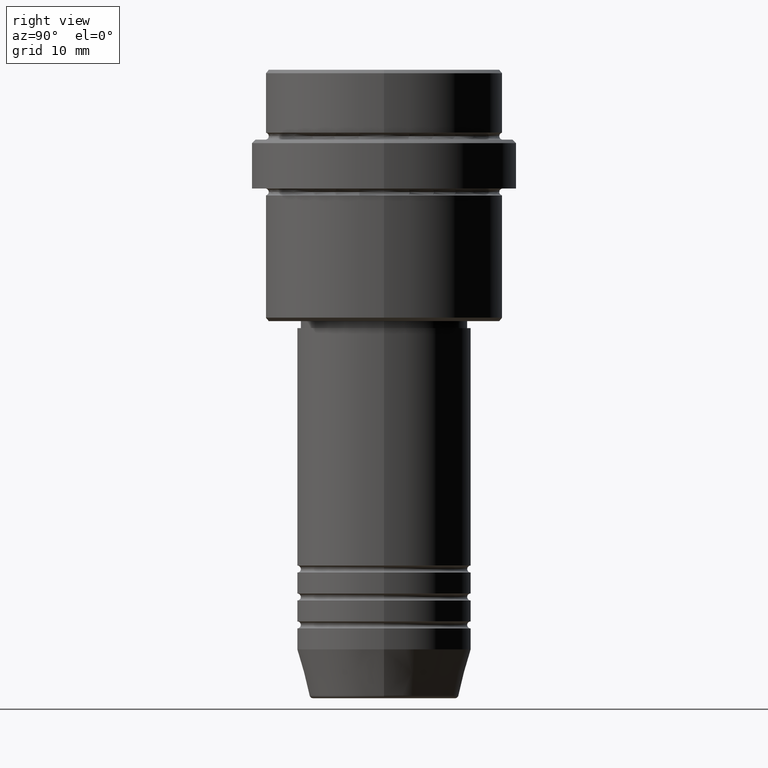
[diagram: clean part render]
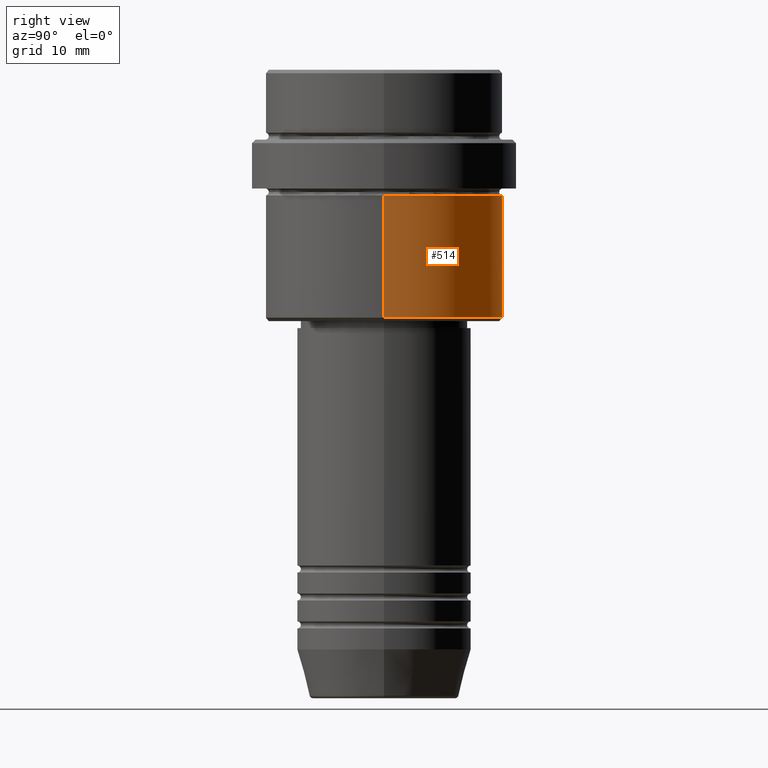
[diagram: same view with one face highlighted and labeled with its STEP entity id]
A machine part, right view. The second image highlights one B-rep face of the part: STEP entity #514.
In plain terms, the highlighted cylindrical surface (partial cylindrical patch) has radius 17 mm, axis along (-0, -0, 1).
Its self-contained STEP definition (entity closure, byte-faithful):
#76 = CIRCLE ( 'NONE', #874, 17.00000000000000000 ) ;
#77 = EDGE_CURVE ( 'NONE', #567, #286, #278, .T. ) ;
#93 = VECTOR ( 'NONE', #449, 1000.000000000000000 ) ;
#199 = EDGE_CURVE ( 'NONE', #567, #811, #1328, .T. ) ;
#204 = CARTESIAN_POINT ( 'NONE',  ( 0.000000000000000000, 0.000000000000000000, 0.000000000000000000 ) ) ;
#229 = CYLINDRICAL_SURFACE ( 'NONE', #240, 17.00000000000000000 ) ;
#240 = AXIS2_PLACEMENT_3D ( 'NONE', #204, #1073, #328 ) ;
#278 = CIRCLE ( 'NONE', #1354, 17.00000000000000000 ) ;
#286 = VERTEX_POINT ( 'NONE', #705 ) ;
#299 = VECTOR ( 'NONE', #639, 1000.000000000000000 ) ;
#328 = DIRECTION ( 'NONE',  ( 1.000000000000000000, 0.000000000000000000, 0.000000000000000000 ) ) ;
#350 = ORIENTED_EDGE ( 'NONE', *, *, #199, .F. ) ;
#375 = DIRECTION ( 'NONE',  ( -0.000000000000000000, -0.000000000000000000, 1.000000000000000000 ) ) ;
#427 = FACE_OUTER_BOUND ( 'NONE', #1110, .T. ) ;
#449 = DIRECTION ( 'NONE',  ( -0.000000000000000000, -0.000000000000000000, 1.000000000000000000 ) ) ;
#467 = DIRECTION ( 'NONE',  ( -1.000000000000000000, 0.000000000000000000, 0.000000000000000000 ) ) ;
#508 = ORIENTED_EDGE ( 'NONE', *, *, #633, .F. ) ;
#514 = ADVANCED_FACE ( 'NONE', ( #427 ), #229, .T. ) ;
#528 = CARTESIAN_POINT ( 'NONE',  ( -17.00000000000000000, 2.081899558550500280E-15, -18.00000000000000355 ) ) ;
#559 = VERTEX_POINT ( 'NONE', #528 ) ;
#567 = VERTEX_POINT ( 'NONE', #1379 ) ;
#633 = EDGE_CURVE ( 'NONE', #811, #559, #76, .T. ) ;
#639 = DIRECTION ( 'NONE',  ( -0.000000000000000000, -0.000000000000000000, 1.000000000000000000 ) ) ;
#645 = CARTESIAN_POINT ( 'NONE',  ( 0.000000000000000000, 0.000000000000000000, -18.00000000000000355 ) ) ;
#705 = CARTESIAN_POINT ( 'NONE',  ( -17.00000000000000000, 2.081899558550500280E-15, -35.49999999999997158 ) ) ;
#785 = ORIENTED_EDGE ( 'NONE', *, *, #1364, .T. ) ;
#811 = VERTEX_POINT ( 'NONE', #1007 ) ;
#874 = AXIS2_PLACEMENT_3D ( 'NONE', #645, #985, #1192 ) ;
#985 = DIRECTION ( 'NONE',  ( -0.000000000000000000, -0.000000000000000000, 1.000000000000000000 ) ) ;
#1007 = CARTESIAN_POINT ( 'NONE',  ( 17.00000000000000000, 0.000000000000000000, -18.00000000000000355 ) ) ;
#1033 = CARTESIAN_POINT ( 'NONE',  ( 0.000000000000000000, 0.000000000000000000, -35.49999999999997158 ) ) ;
#1073 = DIRECTION ( 'NONE',  ( -0.000000000000000000, -0.000000000000000000, 1.000000000000000000 ) ) ;
#1110 = EDGE_LOOP ( 'NONE', ( #1291, #785, #508, #350 ) ) ;
#1192 = DIRECTION ( 'NONE',  ( 1.000000000000000000, 0.000000000000000000, 0.000000000000000000 ) ) ;
#1202 = CARTESIAN_POINT ( 'NONE',  ( -17.00000000000000000, 2.081899558550500280E-15, 0.000000000000000000 ) ) ;
#1214 = LINE ( 'NONE', #1202, #299 ) ;
#1291 = ORIENTED_EDGE ( 'NONE', *, *, #77, .T. ) ;
#1323 = CARTESIAN_POINT ( 'NONE',  ( 17.00000000000000000, 0.000000000000000000, 0.000000000000000000 ) ) ;
#1328 = LINE ( 'NONE', #1323, #93 ) ;
#1354 = AXIS2_PLACEMENT_3D ( 'NONE', #1033, #375, #467 ) ;
#1364 = EDGE_CURVE ( 'NONE', #286, #559, #1214, .T. ) ;
#1379 = CARTESIAN_POINT ( 'NONE',  ( 17.00000000000000000, 0.000000000000000000, -35.49999999999997158 ) ) ;